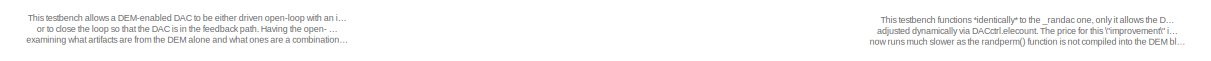
[diagram: root canvas - part 1/3, top center region]
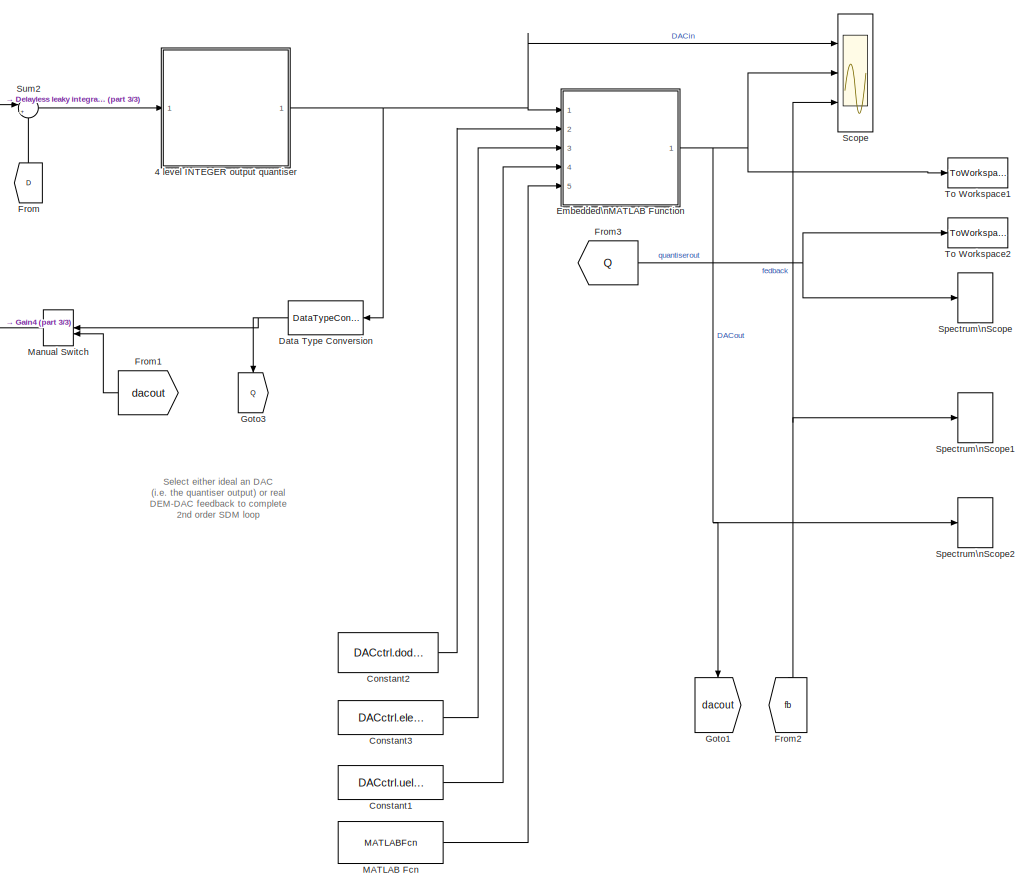
[diagram: root canvas - part 2/3, right side, full height]
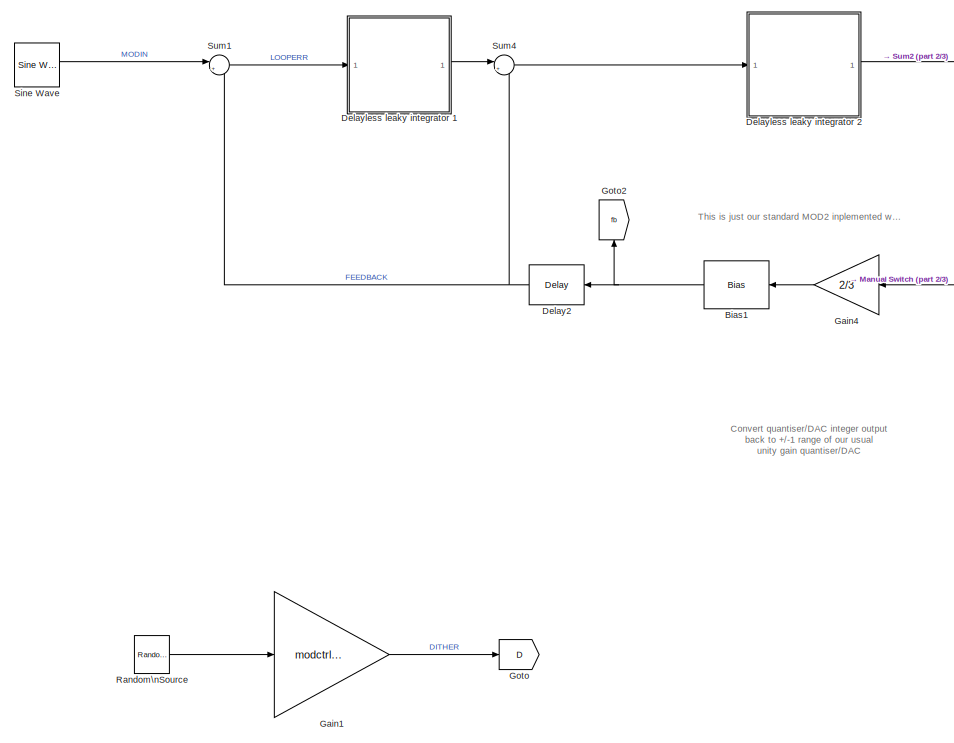
[diagram: root canvas - part 3/3, middle left region]
MODEL mod2_randac2
KIND model
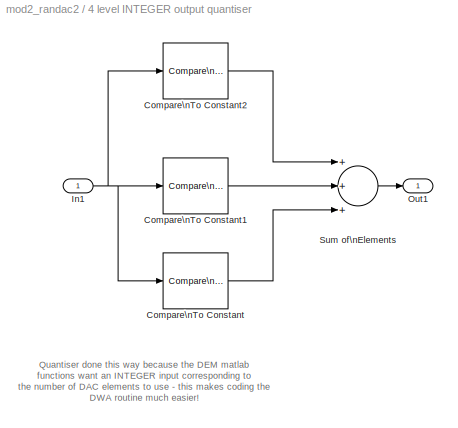
BLOCK [SubSystem] 4 level INTEGER  output quantiser
  FunctionWithSeparateData = off
  MaskHideContents = off
  MinAlgLoopOccurrences = off
  Opaque = off
  Ports = [1, 1]
  PropExecContextOutsideSubsystem = off
  RTWSystemCode = Auto
  RequestExecContextInheritance = off
  SID = 106
BLOCK [Reference] 4 level INTEGER  output quantiser/Compare\nTo Constant  REF=simulink/Logic and Bit\nOperations/Compare\nTo Constant
  FunctionWithSeparateData = off
  LogicOutDataTypeMode = uint8
  Ports = [1, 1]
  RTWMemSecDataConstants = Inherit from model
  RTWMemSecDataInternal = Inherit from model
  RTWMemSecDataParameters = Inherit from model
  RTWMemSecFuncExecute = Inherit from model
  RTWMemSecFuncInitTerm = Inherit from model
  SID = 70
  ShowPortLabels = FromPortIcon
  SourceBlock = simulink/Logic and Bit\nOperations/Compare\nTo Constant
  SourceType = Compare To Constant
  SystemSampleTime = -1
  ZeroCross = on
  const = -2/3
  relop = >=
BLOCK [Reference] 4 level INTEGER  output quantiser/Compare\nTo Constant1  REF=simulink/Logic and Bit\nOperations/Compare\nTo Constant
  FunctionWithSeparateData = off
  LogicOutDataTypeMode = uint8
  Ports = [1, 1]
  RTWMemSecDataConstants = Inherit from model
  RTWMemSecDataInternal = Inherit from model
  RTWMemSecDataParameters = Inherit from model
  RTWMemSecFuncExecute = Inherit from model
  RTWMemSecFuncInitTerm = Inherit from model
  SID = 71
  ShowPortLabels = FromPortIcon
  SourceBlock = simulink/Logic and Bit\nOperations/Compare\nTo Constant
  SourceType = Compare To Constant
  SystemSampleTime = -1
  ZeroCross = on
  const = 0
  relop = >=
BLOCK [Reference] 4 level INTEGER  output quantiser/Compare\nTo Constant2  REF=simulink/Logic and Bit\nOperations/Compare\nTo Constant
  FunctionWithSeparateData = off
  LogicOutDataTypeMode = uint8
  Ports = [1, 1]
  RTWMemSecDataConstants = Inherit from model
  RTWMemSecDataInternal = Inherit from model
  RTWMemSecDataParameters = Inherit from model
  RTWMemSecFuncExecute = Inherit from model
  RTWMemSecFuncInitTerm = Inherit from model
  SID = 72
  ShowPortLabels = FromPortIcon
  SourceBlock = simulink/Logic and Bit\nOperations/Compare\nTo Constant
  SourceType = Compare To Constant
  SystemSampleTime = -1
  ZeroCross = on
  const = 2/3
  relop = >=
BLOCK [Inport] 4 level INTEGER  output quantiser/In1
  IconDisplay = Port number
  SID = 107
BLOCK [Outport] 4 level INTEGER  output quantiser/Out1
  IconDisplay = Port number
  SID = 108
BLOCK [Sum] 4 level INTEGER  output quantiser/Sum of\nElements
  InputSameDT = off
  Inputs = +++
  OutDataTypeStr = Inherit: Inherit via internal rule
  Ports = [3, 1]
  SID = 81
  SaturateOnIntegerOverflow = off
BLOCK [Bias] Bias1
  Bias = -1
  SID = 98
  SaturateOnIntegerOverflow = off
BLOCK [Constant] Constant1
  SID = 90
  SampleTime = 1/Fs
  Value = DACctrl.uelement
BLOCK [Constant] Constant2
  SID = 74
  SampleTime = 1/Fs
  Value = DACctrl.dodem
BLOCK [Constant] Constant3
  SID = 75
  SampleTime = 1/Fs
  Value = DACctrl.elecount
BLOCK [DataTypeConversion] Data Type Conversion
  RndMeth = Floor
  SID = 88
  SaturateOnIntegerOverflow = off
BLOCK [Reference] Delay2  REF=dspsigops/Delay
  InputProcessing = Inherited (this choice will be removed - see release notes)
  Ports = [1, 1]
  SID = 69
  SourceBlock = dspsigops/Delay
  SourceType = Delay
  UserData = DataTag0
  UserDataPersistent = on
  delay = 1
  dif_ic_for_ch = off
  dif_ic_for_dly = off
  dly_unit = Samples
  ic = 0
  ic_detail = off
  reset_popup = None
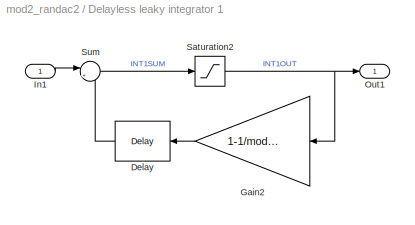
BLOCK [SubSystem] Delayless leaky integrator 1
  FunctionWithSeparateData = off
  MaskHideContents = off
  MinAlgLoopOccurrences = off
  Opaque = off
  Ports = [1, 1]
  PropExecContextOutsideSubsystem = off
  RTWSystemCode = Auto
  RequestExecContextInheritance = off
  SID = 109
BLOCK [Reference] Delayless leaky integrator 1/Delay  REF=dspsigops/Delay
  Ports = [1, 1]
  SID = 67
  SourceBlock = dspsigops/Delay
  SourceType = Delay
  delay = 1
  dif_ic_for_ch = off
  dif_ic_for_dly = off
  dly_unit = Samples
  ic = 0
  ic_detail = off
  reset_popup = None
BLOCK [Gain] Delayless leaky integrator 1/Gain2
  AttributesFormatString = Integrator leakage
  Gain = 1-1/modctrl.igain1
  OutDataTypeStr = Inherit: Inherit via internal rule
  ParamDataTypeStr = Inherit: Inherit via internal rule
  SID = 32
  SaturateOnIntegerOverflow = off
BLOCK [Inport] Delayless leaky integrator 1/In1
  IconDisplay = Port number
  SID = 111
BLOCK [Outport] Delayless leaky integrator 1/Out1
  IconDisplay = Port number
  SID = 110
BLOCK [Saturate] Delayless leaky integrator 1/Saturation2
  InputPortMap = u0
  LowerLimit = -(modctrl.isat1)
  Ports = [1, 1]
  SID = 86
  UpperLimit = modctrl.isat1
BLOCK [Sum] Delayless leaky integrator 1/Sum
  AttributesFormatString = Integrator summer
  IconShape = round
  InputSameDT = off
  Inputs = |++
  OutDataTypeStr = Inherit: Inherit via internal rule
  Ports = [2, 1]
  SID = 3
  SaturateOnIntegerOverflow = off
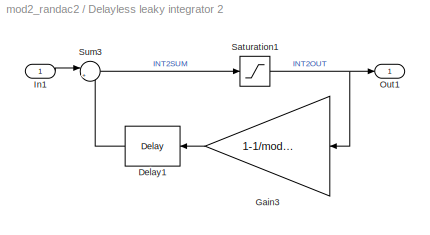
BLOCK [SubSystem] Delayless leaky integrator 2
  FunctionWithSeparateData = off
  MaskHideContents = off
  MinAlgLoopOccurrences = off
  Opaque = off
  Ports = [1, 1]
  PropExecContextOutsideSubsystem = off
  RTWSystemCode = Auto
  RequestExecContextInheritance = off
  SID = 112
BLOCK [Reference] Delayless leaky integrator 2/Delay1  REF=dspsigops/Delay
  Ports = [1, 1]
  SID = 68
  SourceBlock = dspsigops/Delay
  SourceType = Delay
  delay = 1
  dif_ic_for_ch = off
  dif_ic_for_dly = off
  dly_unit = Samples
  ic = 0
  ic_detail = off
  reset_popup = None
BLOCK [Gain] Delayless leaky integrator 2/Gain3
  AttributesFormatString = Integrator leakage
  Gain = 1-1/modctrl.igain2
  OutDataTypeStr = Inherit: Inherit via internal rule
  ParamDataTypeStr = Inherit: Inherit via internal rule
  SID = 61
  SaturateOnIntegerOverflow = off
BLOCK [Inport] Delayless leaky integrator 2/In1
  IconDisplay = Port number
  SID = 114
BLOCK [Outport] Delayless leaky integrator 2/Out1
  IconDisplay = Port number
  SID = 113
BLOCK [Saturate] Delayless leaky integrator 2/Saturation1
  InputPortMap = u0
  LowerLimit = -(modctrl.isat2)
  Ports = [1, 1]
  SID = 62
  UpperLimit = modctrl.isat2
BLOCK [Sum] Delayless leaky integrator 2/Sum3
  AttributesFormatString = Integrator summer
  IconShape = round
  InputSameDT = off
  Inputs = |++
  OutDataTypeStr = Inherit: Inherit via internal rule
  Ports = [2, 1]
  SID = 63
  SaturateOnIntegerOverflow = off
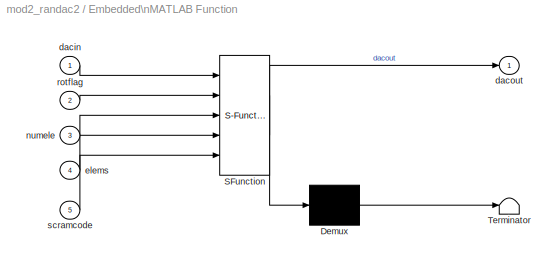
BLOCK [SubSystem] Embedded\nMATLAB Function
  ErrorFcn = Stateflow.Translate.translate
  FunctionWithSeparateData = off
  MaskHideContents = off
  MinAlgLoopOccurrences = off
  Opaque = off
  PermitHierarchicalResolution = ExplicitOnly
  Ports = [5, 1]
  PropExecContextOutsideSubsystem = off
  RTWSystemCode = Auto
  RequestExecContextInheritance = off
  SFBlockType = MATLAB Function
  SID = 118
  TreatAsAtomicUnit = on
BLOCK [Demux] Embedded\nMATLAB Function/ Demux 
  Outputs = 1
  Ports = [1, 1]
  SID = 118::15
BLOCK [S-Function] Embedded\nMATLAB Function/ SFunction 
  EnableBusSupport = off
  FunctionName = sf_sfun
  PortCounts = [5 2]
  Ports = [5, 2]
  SID = 118::14
  Tag = Stateflow S-Function mod2_randac2 2
BLOCK [Terminator] Embedded\nMATLAB Function/ Terminator 
  SID = 118::16
BLOCK [Inport] Embedded\nMATLAB Function/dacin
  IconDisplay = Port number
  SID = 118::1
BLOCK [Outport] Embedded\nMATLAB Function/dacout
  IconDisplay = Port number
  SID = 118::5
BLOCK [Inport] Embedded\nMATLAB Function/elems
  IconDisplay = Port number
  Port = 4
  SID = 118::11
BLOCK [Inport] Embedded\nMATLAB Function/numele
  IconDisplay = Port number
  Port = 3
  SID = 118::12
BLOCK [Inport] Embedded\nMATLAB Function/rotflag
  IconDisplay = Port number
  Port = 2
  SID = 118::10
BLOCK [Inport] Embedded\nMATLAB Function/scramcode
  IconDisplay = Port number
  Port = 5
  SID = 118::13
BLOCK [From] From
  GotoTag = D
  SID = 93
BLOCK [From] From1
  GotoTag = dacout
  SID = 96
BLOCK [From] From2
  GotoTag = fb
  SID = 102
BLOCK [From] From3
  GotoTag = Q
  SID = 105
BLOCK [Gain] Gain1
  AttributesFormatString = Dither level adjust
  Gain = modctrl.dgain1
  OutDataTypeStr = Inherit: Inherit via internal rule
  ParamDataTypeStr = Inherit: Inherit via internal rule
  SID = 29
  SaturateOnIntegerOverflow = off
BLOCK [Gain] Gain4
  AttributesFormatString = Integrator leakage
  Gain = 2/3
  OutDataTypeStr = Inherit: Inherit via internal rule
  ParamDataTypeStr = Inherit: Inherit via internal rule
  SID = 99
  SaturateOnIntegerOverflow = off
BLOCK [Goto] Goto
  GotoTag = D
  SID = 92
BLOCK [Goto] Goto1
  GotoTag = dacout
  SID = 97
BLOCK [Goto] Goto2
  GotoTag = fb
  SID = 100
BLOCK [Goto] Goto3
  GotoTag = Q
  SID = 104
BLOCK [MATLABFcn] MATLAB Fcn
  MATLABFcn = randperm(DACctrl.elecount)
  Ports = [1, 1]
  SID = 117
  SampleTime = 1/Fs
BLOCK [ManualSwitch] Manual Switch
  CurrentSetting = 0
  SID = 94
BLOCK [Reference] Random\nSource  REF=dspsrcs4/Random\nSource
  AttributesFormatString = Dither source
  CltLength = 12
  DataType = Double
  IsInherit = off
  MaxVal = 1
  MeanVal = 0
  MinVal = -1
  NormMethod = Ziggurat
  OutComplex = Real
  Ports = [0, 1]
  RepMode = Not repeatable
  SID = 25
  SampFrame = 1
  SampMode = Discrete
  SampTime = 1/Fs
  SourceBlock = dspsrcs4/Random\nSource
  SourceType = Random Source
  SrcType = Uniform
  UserData = DataTag1
  UserDataPersistent = on
  VarVal = 1
  rawSeed = 1
BLOCK [Scope] Scope
  DataFormat = StructureWithTime
  Floating = off
  NumInputPorts = 3
  Ports = [3]
  SID = 80
  SampleTime = 0
  ShowLegends = off
  YMax = 5~5~5
  YMin = -5~-5~-5
  ZoomMode = xonly
BLOCK [Reference] Sine Wave  REF=dspsrcs4/Sine Wave
  Amplitude = sinamp
  CompMethod = Trigonometric fcn
  Frequency = sinfreq
  LastOutDataTypeStr = double
  OutComplex = Real
  OutDataTypeStr = double
  Phase = 0
  Ports = [0, 1]
  ResetState = Restart at time zero
  SID = 85
  SampleMode = Discrete
  SampleTime = 1/Fs
  SamplesPerFrame = 1
  SourceBlock = dspsrcs4/Sine Wave
  SourceType = Sine Wave
  TableSize = Speed
  additionalParams = off
  allowOverrides = on
  dataType = double
  fracBitsMode = Best precision
  numFracBits = 15
  udDataType = sfix(16)
  wordLen = 16
BLOCK [SpectrumAnalyzer] Spectrum\nScope
  CloseFcn = scopeextensions.ScopeBlock.callback(gcbh, 'onBlockClose');
  CopyFcn = scopeextensions.ScopeBlock.callback(gcbh, 'onBlockCopy', gcbh);
  DeleteFcn = scopeextensions.ScopeBlock.callback(gcbh, 'onBlockDelete');
  NameChangeFcn = scopeextensions.ScopeBlock.callback(gcbh, 'onBlockRename');
  Ports = [1]
  PreDeleteFcn = scopeextensions.ScopeBlock.callback(gcbh, 'onBlockPreDelete');
  PreSaveFcn = scopeextensions.ScopeBlock.callback(gcbh, 'onModelSave');
  SID = 21
  UserData = DataTag2
  UserDataPersistent = on
BLOCK [SpectrumAnalyzer] Spectrum\nScope1
  CloseFcn = scopeextensions.ScopeBlock.callback(gcbh, 'onBlockClose');
  CopyFcn = scopeextensions.ScopeBlock.callback(gcbh, 'onBlockCopy', gcbh);
  DeleteFcn = scopeextensions.ScopeBlock.callback(gcbh, 'onBlockDelete');
  NameChangeFcn = scopeextensions.ScopeBlock.callback(gcbh, 'onBlockRename');
  Ports = [1]
  PreDeleteFcn = scopeextensions.ScopeBlock.callback(gcbh, 'onBlockPreDelete');
  PreSaveFcn = scopeextensions.ScopeBlock.callback(gcbh, 'onModelSave');
  SID = 119
  UserData = DataTag3
  UserDataPersistent = on
BLOCK [SpectrumAnalyzer] Spectrum\nScope2
  CloseFcn = scopeextensions.ScopeBlock.callback(gcbh, 'onBlockClose');
  CopyFcn = scopeextensions.ScopeBlock.callback(gcbh, 'onBlockCopy', gcbh);
  DeleteFcn = scopeextensions.ScopeBlock.callback(gcbh, 'onBlockDelete');
  NameChangeFcn = scopeextensions.ScopeBlock.callback(gcbh, 'onBlockRename');
  Ports = [1]
  PreDeleteFcn = scopeextensions.ScopeBlock.callback(gcbh, 'onBlockPreDelete');
  PreSaveFcn = scopeextensions.ScopeBlock.callback(gcbh, 'onModelSave');
  SID = 120
  UserData = DataTag4
  UserDataPersistent = on
BLOCK [Sum] Sum1
  AttributesFormatString = Modulator input\\nloop servo error (input - fbk)
  IconShape = round
  InputSameDT = off
  Inputs = |+-
  OutDataTypeStr = Inherit: Inherit via internal rule
  Ports = [2, 1]
  SID = 7
  SaturateOnIntegerOverflow = off
BLOCK [Sum] Sum2
  IconShape = round
  InputSameDT = off
  Inputs = |++
  OutDataTypeStr = Inherit: Inherit via internal rule
  Ports = [2, 1]
  SID = 30
  SaturateOnIntegerOverflow = off
BLOCK [Sum] Sum4
  IconShape = round
  InputSameDT = off
  Inputs = |+-
  OutDataTypeStr = Inherit: Inherit via internal rule
  Ports = [2, 1]
  SID = 64
  SaturateOnIntegerOverflow = off
BLOCK [ToWorkspace] To Workspace1
  MaxDataPoints = inf
  Ports = [1]
  SID = 91
  SampleTime = -1
  VariableName = DACout
BLOCK [ToWorkspace] To Workspace2
  MaxDataPoints = inf
  Ports = [1]
  SID = 103
  SampleTime = -1
  VariableName = Qout
ANNOTATION (root): This is just our standard MOD2 inplemented with delayless integrators \n\n\n\n\n\n\n\n\n\n\n\n\n\n\n
ANNOTATION (root): Select either ideal an DAC \n(i.e. the quantiser output) or real\nDEM-DAC feedback to complete\n2nd order SDM loop
ANNOTATION (root): Convert quantiser/DAC integer output\nback to +/-1 range of our usual\nunity gain quantiser/DAC
ANNOTATION (root): This testbench allows a DEM-enabled DAC to be either driven open-loop with an ideal 2nd order, 2-bit SDM modulated input,\nor to close the loop so that the DAC is in the feedback path. Having the open- and closed-loop options helps in\nexamining what artifacts are from the DEM alone and what ones are a combination of the DEM and SDM loop dynamics
ANNOTATION (root): This testbench functions *identically* to the _randac one, only it allows the DAC size to be\nadjusted dynamically via DACctrl.elecount. The price for this \"improvement\" is that it\nnow runs much slower as the randperm() function is not compiled into the DEM block.
ANNOTATION 4 level INTEGER  output quantiser: Quantiser done this way because the DEM matlab\nfunctions want an INTEGER input corresponding to\nthe number of DAC elements to use - this makes coding the\nDWA routine much easier!
LINE 4 level INTEGER  output quantiser/Compare\nTo Constant1:1 -> 4 level INTEGER  output quantiser/Sum of\nElements:2
LINE 4 level INTEGER  output quantiser/Compare\nTo Constant2:1 -> 4 level INTEGER  output quantiser/Sum of\nElements:1
LINE 4 level INTEGER  output quantiser/Compare\nTo Constant:1 -> 4 level INTEGER  output quantiser/Sum of\nElements:3
NET 4 level INTEGER  output quantiser/In1:1 -> 4 level INTEGER  output quantiser/Compare\nTo Constant1:1, 4 level INTEGER  output quantiser/Compare\nTo Constant2:1, 4 level INTEGER  output quantiser/Compare\nTo Constant:1
LINE 4 level INTEGER  output quantiser/Sum of\nElements:1 -> 4 level INTEGER  output quantiser/Out1:1
NET 4 level INTEGER  output quantiser:1 -> Data Type Conversion:1, Embedded\nMATLAB Function:1, Scope:1
NET Bias1:1 -> Delay2:1, Goto2:1
LINE Constant1:1 -> Embedded\nMATLAB Function:4
LINE Constant2:1 -> Embedded\nMATLAB Function:2
LINE Constant3:1 -> Embedded\nMATLAB Function:3
NET Data Type Conversion:1 -> Goto3:1, Manual Switch:1
NET Delay2:1 -> Sum1:2, Sum4:2
LINE Delayless leaky integrator 1/Delay:1 -> Delayless leaky integrator 1/Sum:2
LINE Delayless leaky integrator 1/Gain2:1 -> Delayless leaky integrator 1/Delay:1
LINE Delayless leaky integrator 1/In1:1 -> Delayless leaky integrator 1/Sum:1
NET Delayless leaky integrator 1/Saturation2:1 -> Delayless leaky integrator 1/Gain2:1, Delayless leaky integrator 1/Out1:1
LINE Delayless leaky integrator 1/Sum:1 -> Delayless leaky integrator 1/Saturation2:1
LINE Delayless leaky integrator 1:1 -> Sum4:1
LINE Delayless leaky integrator 2/Delay1:1 -> Delayless leaky integrator 2/Sum3:2
LINE Delayless leaky integrator 2/Gain3:1 -> Delayless leaky integrator 2/Delay1:1
LINE Delayless leaky integrator 2/In1:1 -> Delayless leaky integrator 2/Sum3:1
NET Delayless leaky integrator 2/Saturation1:1 -> Delayless leaky integrator 2/Gain3:1, Delayless leaky integrator 2/Out1:1
LINE Delayless leaky integrator 2/Sum3:1 -> Delayless leaky integrator 2/Saturation1:1
LINE Delayless leaky integrator 2:1 -> Sum2:1
LINE Embedded\nMATLAB Function/ Demux :1 -> Embedded\nMATLAB Function/ Terminator :1
LINE Embedded\nMATLAB Function/ SFunction :1 -> Embedded\nMATLAB Function/ Demux :1
LINE Embedded\nMATLAB Function/ SFunction :2 -> Embedded\nMATLAB Function/dacout:1
LINE Embedded\nMATLAB Function/dacin:1 -> Embedded\nMATLAB Function/ SFunction :1
LINE Embedded\nMATLAB Function/elems:1 -> Embedded\nMATLAB Function/ SFunction :4
LINE Embedded\nMATLAB Function/numele:1 -> Embedded\nMATLAB Function/ SFunction :3
LINE Embedded\nMATLAB Function/rotflag:1 -> Embedded\nMATLAB Function/ SFunction :2
LINE Embedded\nMATLAB Function/scramcode:1 -> Embedded\nMATLAB Function/ SFunction :5
NET Embedded\nMATLAB Function:1 -> Goto1:1, Scope:2, Spectrum\nScope2:1, To Workspace1:1
LINE From1:1 -> Manual Switch:2
NET From2:1 -> Scope:3, Spectrum\nScope1:1
NET From3:1 -> Spectrum\nScope:1, To Workspace2:1
LINE From:1 -> Sum2:2
LINE Gain1:1 -> Goto:1
LINE Gain4:1 -> Bias1:1
LINE MATLAB Fcn:1 -> Embedded\nMATLAB Function:5
LINE Manual Switch:1 -> Gain4:1
LINE Random\nSource:1 -> Gain1:1
LINE Sine Wave:1 -> Sum1:1
LINE Sum1:1 -> Delayless leaky integrator 1:1
LINE Sum2:1 -> 4 level INTEGER  output quantiser:1
LINE Sum4:1 -> Delayless leaky integrator 2:1
note: NET lines group one-source signal fan-out (src -> all destinations, sorted); 1:1 wires keep LINE
CHART Embedded\nMATLAB Function states=1 transitions=1
  STATE_LABEL 'eML_blk_kernel()'
